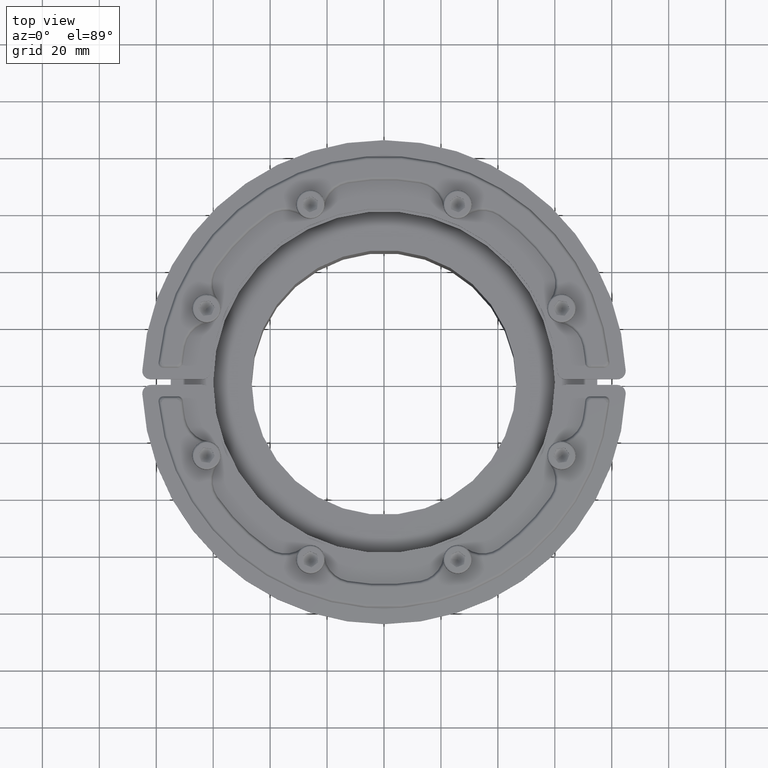
[diagram: clean part render]
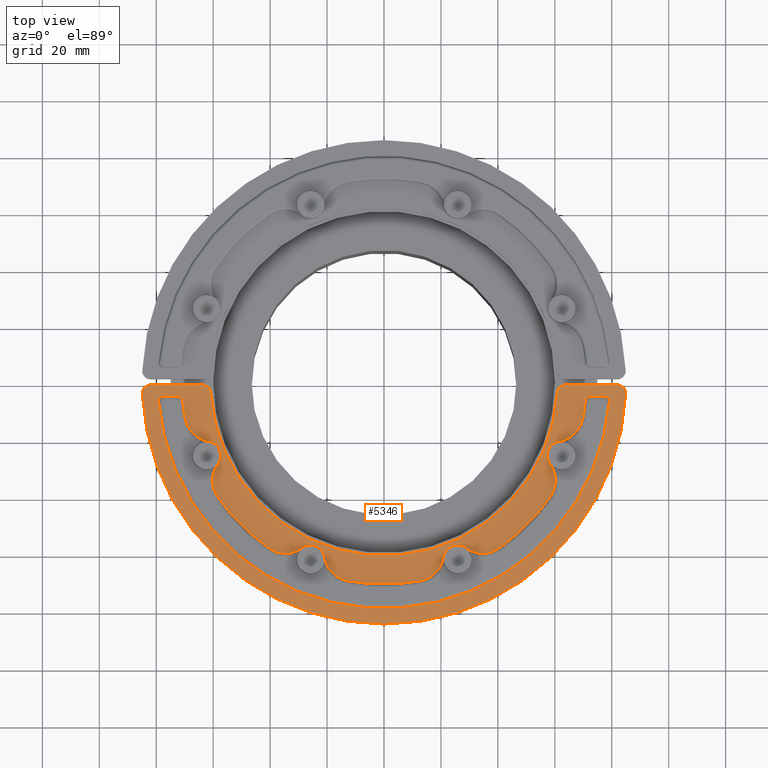
[diagram: same view with one face highlighted and labeled with its STEP entity id]
A machine part, top view. The second image highlights one B-rep face of the part: STEP entity #5346.
In plain terms, the highlighted planar face has unit normal (0, 0, 1).
Its self-contained STEP definition (entity closure, byte-faithful):
#40=B_SPLINE_CURVE_WITH_KNOTS('',3,(#8562,#8563,#8564,#8565,#8566,#8567,
#8568,#8569,#8570,#8571),.UNSPECIFIED.,.F.,.F.,(4,2,2,2,4),(0.,0.0737591383660685,
0.137984486119956,0.197526059319079,0.259689030170844),.UNSPECIFIED.);
#43=B_SPLINE_CURVE_WITH_KNOTS('',3,(#8604,#8605,#8606,#8607,#8608,#8609,
#8610,#8611,#8612,#8613,#8614,#8615),.UNSPECIFIED.,.F.,.F.,(4,2,2,2,2,4),
(0.,0.0768242660704358,0.140348230484178,0.20075593971541,0.245620467000132,
0.292974545126441),.UNSPECIFIED.);
#46=B_SPLINE_CURVE_WITH_KNOTS('',3,(#8649,#8650,#8651,#8652,#8653,#8654,
#8655,#8656,#8657,#8658),.UNSPECIFIED.,.F.,.F.,(4,2,2,2,4),(0.,0.0737731416211753,
0.138011891422635,0.200687434417592,0.259700462694515),.UNSPECIFIED.);
#49=B_SPLINE_CURVE_WITH_KNOTS('',3,(#8690,#8691,#8692,#8693,#8694,#8695,
#8696,#8697,#8698,#8699,#8700,#8701),.UNSPECIFIED.,.F.,.F.,(4,2,2,2,2,4),
(0.,0.0768437936843456,0.140401779394522,0.200734305158943,0.245638052211019,
0.292968852687228),.UNSPECIFIED.);
#115=FACE_BOUND('',#775,.T.);
#148=PLANE('',#5793);
#457=FACE_OUTER_BOUND('',#774,.T.);
#774=EDGE_LOOP('',(#3653,#3654,#3655,#3656,#3657,#3658,#3659,#3660));
#775=EDGE_LOOP('',(#3661,#3662,#3663,#3664,#3665,#3666,#3667,#3668,#3669,
#3670,#3671,#3672,#3673,#3674,#3675,#3676,#3677,#3678,#3679,#3680,#3681,
#3682,#3683,#3684));
#1062=LINE('',#8216,#1354);
#1068=LINE('',#8231,#1360);
#1085=LINE('',#8578,#1377);
#1086=LINE('',#8665,#1378);
#1354=VECTOR('',#6461,10.);
#1360=VECTOR('',#6477,10.);
#1377=VECTOR('',#6688,10.);
#1378=VECTOR('',#6695,10.);
#1664=CIRCLE('',#5669,3.);
#1665=CIRCLE('',#5672,3.);
#1666=CIRCLE('',#5674,3.);
#1668=CIRCLE('',#5678,3.);
#1720=CIRCLE('',#5751,5.);
#1721=CIRCLE('',#5753,9.99999999999993);
#1722=CIRCLE('',#5755,71.);
#1723=CIRCLE('',#5757,9.9999999999999);
#1724=CIRCLE('',#5759,5.);
#1725=CIRCLE('',#5761,9.99999999999992);
#1726=CIRCLE('',#5763,71.);
#1727=CIRCLE('',#5765,9.9999999999999);
#1728=CIRCLE('',#5767,5.);
#1729=CIRCLE('',#5769,9.99999999999993);
#1730=CIRCLE('',#5771,71.);
#1731=CIRCLE('',#5774,79.5);
#1732=CIRCLE('',#5777,71.);
#1733=CIRCLE('',#5779,9.9999999999999);
#1734=CIRCLE('',#5781,5.);
#1735=CIRCLE('',#5783,9.99999999999992);
#1736=CIRCLE('',#5785,71.);
#1737=CIRCLE('',#5787,9.9999999999999);
#1739=CIRCLE('',#5790,61.);
#1740=CIRCLE('',#5792,85.);
#2092=VERTEX_POINT('',#8209);
#2093=VERTEX_POINT('',#8211);
#2094=VERTEX_POINT('',#8215);
#2095=VERTEX_POINT('',#8220);
#2096=VERTEX_POINT('',#8224);
#2097=VERTEX_POINT('',#8226);
#2098=VERTEX_POINT('',#8230);
#2101=VERTEX_POINT('',#8238);
#2132=VERTEX_POINT('',#8489);
#2133=VERTEX_POINT('',#8491);
#2134=VERTEX_POINT('',#8495);
#2135=VERTEX_POINT('',#8499);
#2136=VERTEX_POINT('',#8503);
#2137=VERTEX_POINT('',#8507);
#2138=VERTEX_POINT('',#8511);
#2139=VERTEX_POINT('',#8515);
#2140=VERTEX_POINT('',#8519);
#2141=VERTEX_POINT('',#8523);
#2142=VERTEX_POINT('',#8527);
#2143=VERTEX_POINT('',#8531);
#2144=VERTEX_POINT('',#8557);
#2145=VERTEX_POINT('',#8573);
#2146=VERTEX_POINT('',#8599);
#2147=VERTEX_POINT('',#8617);
#2148=VERTEX_POINT('',#8643);
#2149=VERTEX_POINT('',#8648);
#2150=VERTEX_POINT('',#8664);
#2151=VERTEX_POINT('',#8703);
#2152=VERTEX_POINT('',#8707);
#2153=VERTEX_POINT('',#8711);
#2154=VERTEX_POINT('',#8715);
#2155=VERTEX_POINT('',#8719);
#2598=EDGE_CURVE('',#2092,#2093,#1664,.T.);
#2600=EDGE_CURVE('',#2094,#2093,#1062,.T.);
#2603=EDGE_CURVE('',#2094,#2095,#1665,.T.);
#2606=EDGE_CURVE('',#2096,#2097,#1666,.T.);
#2608=EDGE_CURVE('',#2098,#2097,#1068,.T.);
#2612=EDGE_CURVE('',#2098,#2101,#1668,.T.);
#2672=EDGE_CURVE('',#2133,#2132,#1720,.T.);
#2675=EDGE_CURVE('',#2132,#2134,#1721,.T.);
#2677=EDGE_CURVE('',#2134,#2135,#1722,.T.);
#2679=EDGE_CURVE('',#2135,#2136,#1723,.T.);
#2681=EDGE_CURVE('',#2136,#2137,#1724,.T.);
#2683=EDGE_CURVE('',#2137,#2138,#1725,.T.);
#2685=EDGE_CURVE('',#2138,#2139,#1726,.T.);
#2687=EDGE_CURVE('',#2139,#2140,#1727,.T.);
#2689=EDGE_CURVE('',#2140,#2141,#1728,.T.);
#2691=EDGE_CURVE('',#2141,#2142,#1729,.T.);
#2693=EDGE_CURVE('',#2142,#2143,#1730,.T.);
#2695=EDGE_CURVE('',#2144,#2143,#40,.F.);
#2697=EDGE_CURVE('',#2144,#2145,#1085,.T.);
#2699=EDGE_CURVE('',#2146,#2145,#43,.F.);
#2701=EDGE_CURVE('',#2146,#2147,#1731,.T.);
#2703=EDGE_CURVE('',#2148,#2149,#46,.F.);
#2705=EDGE_CURVE('',#2150,#2149,#1086,.T.);
#2707=EDGE_CURVE('',#2150,#2147,#49,.F.);
#2709=EDGE_CURVE('',#2148,#2151,#1732,.T.);
#2711=EDGE_CURVE('',#2151,#2152,#1733,.T.);
#2713=EDGE_CURVE('',#2152,#2153,#1734,.T.);
#2715=EDGE_CURVE('',#2153,#2154,#1735,.T.);
#2717=EDGE_CURVE('',#2154,#2155,#1736,.T.);
#2718=EDGE_CURVE('',#2155,#2133,#1737,.T.);
#2720=EDGE_CURVE('',#2092,#2101,#1739,.T.);
#2721=EDGE_CURVE('',#2096,#2095,#1740,.T.);
#3653=ORIENTED_EDGE('',*,*,#2598,.F.);
#3654=ORIENTED_EDGE('',*,*,#2720,.T.);
#3655=ORIENTED_EDGE('',*,*,#2612,.F.);
#3656=ORIENTED_EDGE('',*,*,#2608,.T.);
#3657=ORIENTED_EDGE('',*,*,#2606,.F.);
#3658=ORIENTED_EDGE('',*,*,#2721,.T.);
#3659=ORIENTED_EDGE('',*,*,#2603,.F.);
#3660=ORIENTED_EDGE('',*,*,#2600,.T.);
#3661=ORIENTED_EDGE('',*,*,#2705,.T.);
#3662=ORIENTED_EDGE('',*,*,#2703,.F.);
#3663=ORIENTED_EDGE('',*,*,#2709,.T.);
#3664=ORIENTED_EDGE('',*,*,#2711,.T.);
#3665=ORIENTED_EDGE('',*,*,#2713,.T.);
#3666=ORIENTED_EDGE('',*,*,#2715,.T.);
#3667=ORIENTED_EDGE('',*,*,#2717,.T.);
#3668=ORIENTED_EDGE('',*,*,#2718,.T.);
#3669=ORIENTED_EDGE('',*,*,#2672,.T.);
#3670=ORIENTED_EDGE('',*,*,#2675,.T.);
#3671=ORIENTED_EDGE('',*,*,#2677,.T.);
#3672=ORIENTED_EDGE('',*,*,#2679,.T.);
#3673=ORIENTED_EDGE('',*,*,#2681,.T.);
#3674=ORIENTED_EDGE('',*,*,#2683,.T.);
#3675=ORIENTED_EDGE('',*,*,#2685,.T.);
#3676=ORIENTED_EDGE('',*,*,#2687,.T.);
#3677=ORIENTED_EDGE('',*,*,#2689,.T.);
#3678=ORIENTED_EDGE('',*,*,#2691,.T.);
#3679=ORIENTED_EDGE('',*,*,#2693,.T.);
#3680=ORIENTED_EDGE('',*,*,#2695,.F.);
#3681=ORIENTED_EDGE('',*,*,#2697,.T.);
#3682=ORIENTED_EDGE('',*,*,#2699,.F.);
#3683=ORIENTED_EDGE('',*,*,#2701,.T.);
#3684=ORIENTED_EDGE('',*,*,#2707,.F.);
#5346=ADVANCED_FACE('',(#457,#115),#148,.T.);
#5669=AXIS2_PLACEMENT_3D('',#8212,#6456,#6457);
#5672=AXIS2_PLACEMENT_3D('',#8221,#6466,#6467);
#5674=AXIS2_PLACEMENT_3D('',#8227,#6472,#6473);
#5678=AXIS2_PLACEMENT_3D('',#8239,#6484,#6485);
#5751=AXIS2_PLACEMENT_3D('',#8492,#6634,#6635);
#5753=AXIS2_PLACEMENT_3D('',#8497,#6640,#6641);
#5755=AXIS2_PLACEMENT_3D('',#8501,#6645,#6646);
#5757=AXIS2_PLACEMENT_3D('',#8505,#6650,#6651);
#5759=AXIS2_PLACEMENT_3D('',#8509,#6655,#6656);
#5761=AXIS2_PLACEMENT_3D('',#8513,#6660,#6661);
#5763=AXIS2_PLACEMENT_3D('',#8517,#6665,#6666);
#5765=AXIS2_PLACEMENT_3D('',#8521,#6670,#6671);
#5767=AXIS2_PLACEMENT_3D('',#8525,#6675,#6676);
#5769=AXIS2_PLACEMENT_3D('',#8529,#6680,#6681);
#5771=AXIS2_PLACEMENT_3D('',#8536,#6684,#6685);
#5774=AXIS2_PLACEMENT_3D('',#8622,#6691,#6692);
#5777=AXIS2_PLACEMENT_3D('',#8705,#6699,#6700);
#5779=AXIS2_PLACEMENT_3D('',#8709,#6704,#6705);
#5781=AXIS2_PLACEMENT_3D('',#8713,#6709,#6710);
#5783=AXIS2_PLACEMENT_3D('',#8717,#6714,#6715);
#5785=AXIS2_PLACEMENT_3D('',#8721,#6719,#6720);
#5787=AXIS2_PLACEMENT_3D('',#8723,#6723,#6724);
#5790=AXIS2_PLACEMENT_3D('',#8726,#6729,#6730);
#5792=AXIS2_PLACEMENT_3D('',#8728,#6733,#6734);
#5793=AXIS2_PLACEMENT_3D('',#8729,#6735,#6736);
#6456=DIRECTION('center_axis',(0.,0.,-1.));
#6457=DIRECTION('ref_axis',(-0.684653196881456,0.728868986855664,0.));
#6461=DIRECTION('',(-1.,1.22464679914735E-16,0.));
#6466=DIRECTION('center_axis',(0.,0.,-1.));
#6467=DIRECTION('ref_axis',(0.724147943380659,0.689644659297498,0.));
#6472=DIRECTION('center_axis',(0.,0.,-1.));
#6473=DIRECTION('ref_axis',(-0.724147943380658,0.689644659297499,0.));
#6477=DIRECTION('',(-1.,1.22464679914735E-16,0.));
#6484=DIRECTION('center_axis',(0.,0.,-1.));
#6485=DIRECTION('ref_axis',(0.684653196881457,0.728868986855663,0.));
#6634=DIRECTION('center_axis',(0.,0.,-1.));
#6635=DIRECTION('ref_axis',(0.987489011013653,0.157687834430174,0.));
#6640=DIRECTION('center_axis',(0.,0.,1.));
#6641=DIRECTION('ref_axis',(0.987489011013653,0.15768783443017,0.));
#6645=DIRECTION('center_axis',(0.,0.,1.));
#6646=DIRECTION('ref_axis',(0.18063600851539,0.983550015214086,0.));
#6650=DIRECTION('center_axis',(0.,0.,1.));
#6651=DIRECTION('ref_axis',(-0.180636008515384,0.983550015214087,0.));
#6655=DIRECTION('center_axis',(0.,0.,-1.));
#6656=DIRECTION('ref_axis',(0.586758038998754,0.809762313071148,0.));
#6660=DIRECTION('center_axis',(0.,0.,1.));
#6661=DIRECTION('ref_axis',(0.586758038998757,0.809762313071147,0.));
#6665=DIRECTION('center_axis',(0.,0.,1.));
#6666=DIRECTION('ref_axis',(-0.567745938846309,0.823203831941715,0.));
#6670=DIRECTION('center_axis',(0.,0.,1.));
#6671=DIRECTION('ref_axis',(-0.823203831941712,0.567745938846314,0.));
#6675=DIRECTION('center_axis',(0.,0.,-1.));
#6676=DIRECTION('ref_axis',(-0.157687834430174,0.987489011013653,0.));
#6680=DIRECTION('center_axis',(0.,0.,1.));
#6681=DIRECTION('ref_axis',(-0.15768783443017,0.987489011013653,0.));
#6684=DIRECTION('center_axis',(0.,0.,1.));
#6685=DIRECTION('ref_axis',(-0.983550015214086,0.18063600851539,0.));
#6688=DIRECTION('',(1.,-1.22464679914735E-16,0.));
#6691=DIRECTION('center_axis',(0.,0.,-1.));
#6692=DIRECTION('ref_axis',(-0.998020270468793,-0.0628930817610062,0.));
#6695=DIRECTION('',(1.,-1.22464679914735E-16,0.));
#6699=DIRECTION('center_axis',(0.,0.,1.));
#6700=DIRECTION('ref_axis',(0.997517251246522,0.0704225352112675,0.));
#6704=DIRECTION('center_axis',(0.,0.,1.));
#6705=DIRECTION('ref_axis',(0.983550015214087,0.180636008515384,0.));
#6709=DIRECTION('center_axis',(0.,0.,-1.));
#6710=DIRECTION('ref_axis',(0.809762313071148,-0.586758038998754,0.));
#6714=DIRECTION('center_axis',(0.,0.,1.));
#6715=DIRECTION('ref_axis',(0.809762313071147,-0.586758038998757,0.));
#6719=DIRECTION('center_axis',(0.,0.,1.));
#6720=DIRECTION('ref_axis',(0.823203831941715,0.567745938846309,0.));
#6723=DIRECTION('center_axis',(0.,0.,1.));
#6724=DIRECTION('ref_axis',(0.567745938846314,0.823203831941712,0.));
#6729=DIRECTION('center_axis',(0.,0.,-1.));
#6730=DIRECTION('ref_axis',(0.999865618490289,0.0163934426229507,0.));
#6733=DIRECTION('center_axis',(0.,0.,1.));
#6734=DIRECTION('ref_axis',(-0.999930793452978,-0.0117647058823528,0.));
#6735=DIRECTION('center_axis',(0.,0.,1.));
#6736=DIRECTION('ref_axis',(-1.,1.22464679914735E-16,0.));
#8209=CARTESIAN_POINT('',(60.8807427989344,-3.81250000000001,3.));
#8211=CARTESIAN_POINT('',(63.8748776906853,-1.00000000000001,3.));
#8212=CARTESIAN_POINT('Origin',(63.8748776906853,-4.00000000000001,3.));
#8215=CARTESIAN_POINT('',(81.9023809177731,-1.00000000000001,3.));
#8216=CARTESIAN_POINT('',(84.9941174435031,-1.00000000000001,3.));
#8220=CARTESIAN_POINT('',(84.8988094879355,-4.14634146341464,3.));
#8221=CARTESIAN_POINT('Origin',(81.9023809177731,-4.,3.));
#8224=CARTESIAN_POINT('',(-84.8988094879355,-4.14634146341462,3.));
#8226=CARTESIAN_POINT('',(-81.9023809177731,-0.99999999999999,3.));
#8227=CARTESIAN_POINT('Origin',(-81.9023809177731,-3.99999999999999,3.));
#8230=CARTESIAN_POINT('',(-63.8748776906853,-0.999999999999992,3.));
#8231=CARTESIAN_POINT('',(-60.9918027279076,-0.999999999999993,3.));
#8238=CARTESIAN_POINT('',(-60.8807427989344,-3.8125,3.));
#8239=CARTESIAN_POINT('Origin',(-63.8748776906853,-4.,3.));
#8489=CARTESIAN_POINT('',(-20.8936866295753,-61.573429272361,3.));
#8491=CARTESIAN_POINT('',(-28.7649218796373,-58.3130568791561,3.));
#8492=CARTESIAN_POINT('Origin',(-25.8311316846436,-62.3618684445118,3.));
#8495=CARTESIAN_POINT('',(-12.8251566045927,-69.8320510802001,3.));
#8497=CARTESIAN_POINT('Origin',(-11.0187965194389,-59.9965509280593,3.));
#8499=CARTESIAN_POINT('',(12.8251566045927,-69.8320510802001,3.));
#8501=CARTESIAN_POINT('Origin',(0.,0.,3.));
#8503=CARTESIAN_POINT('',(20.8936866295753,-61.573429272361,3.));
#8505=CARTESIAN_POINT('Origin',(11.0187965194388,-59.9965509280593,3.));
#8507=CARTESIAN_POINT('',(28.7649218796373,-58.3130568791561,3.));
#8509=CARTESIAN_POINT('Origin',(25.8311316846435,-62.3618684445119,3.));
#8511=CARTESIAN_POINT('',(40.3099616580879,-58.4474720678618,3.));
#8513=CARTESIAN_POINT('Origin',(34.6325022696248,-50.2154337484447,3.));
#8515=CARTESIAN_POINT('',(58.4474720678617,-40.309961658088,3.));
#8517=CARTESIAN_POINT('Origin',(0.,0.,3.));
#8519=CARTESIAN_POINT('',(58.3130568791561,-28.7649218796374,3.));
#8521=CARTESIAN_POINT('Origin',(50.2154337484447,-34.6325022696249,3.));
#8523=CARTESIAN_POINT('',(61.573429272361,-20.8936866295753,3.));
#8525=CARTESIAN_POINT('Origin',(62.3618684445118,-25.8311316846436,3.));
#8527=CARTESIAN_POINT('',(69.8320510802001,-12.8251566045927,3.));
#8529=CARTESIAN_POINT('Origin',(59.9965509280593,-11.0187965194389,3.));
#8531=CARTESIAN_POINT('',(70.6952072465394,-6.57173284908087,3.00000000165182));
#8536=CARTESIAN_POINT('Origin',(0.,0.,3.));
#8557=CARTESIAN_POINT('',(72.4198226101459,-5.00000000108297,3.00000000187574));
#8562=CARTESIAN_POINT('Ctrl Pts',(70.6952072447973,-6.57173284721473,3.));
#8563=CARTESIAN_POINT('Ctrl Pts',(70.7179643035946,-6.32692451045478,3.));
#8564=CARTESIAN_POINT('Ctrl Pts',(70.7836218728499,-6.08855457425566,3.00000000000062));
#8565=CARTESIAN_POINT('Ctrl Pts',(70.9982263399093,-5.68293269670203,3.00000000000062));
#8566=CARTESIAN_POINT('Ctrl Pts',(71.1320919970651,-5.51680846078489,3.00000000000001));
#8567=CARTESIAN_POINT('Ctrl Pts',(71.4498148394007,-5.25551816030517,3.00000000000001));
#8568=CARTESIAN_POINT('Ctrl Pts',(71.6236417622012,-5.16071898650155,3.));
#8569=CARTESIAN_POINT('Ctrl Pts',(72.0070039999619,-5.03074311381591,3.));
#8570=CARTESIAN_POINT('Ctrl Pts',(72.2127715174494,-5.00000000000001,3.));
#8571=CARTESIAN_POINT('Ctrl Pts',(72.4198226081719,-5.00000000000001,3.));
#8573=CARTESIAN_POINT('',(77.4760183160204,-4.99999999827378,2.99999999701008));
#8578=CARTESIAN_POINT('',(35.4118624192515,-5.,3.));
#8599=CARTESIAN_POINT('',(79.2015672279042,-6.88198730277634,2.99999999677662));
#8604=CARTESIAN_POINT('Ctrl Pts',(77.4760183122549,-5.00000000000001,3.));
#8605=CARTESIAN_POINT('Ctrl Pts',(77.7320991991564,-5.00000000000001,3.));
#8606=CARTESIAN_POINT('Ctrl Pts',(77.9866213128213,-5.04377399056024,3.00000000000213));
#8607=CARTESIAN_POINT('Ctrl Pts',(78.4175396454987,-5.22233978961189,3.00000000000213));
#8608=CARTESIAN_POINT('Ctrl Pts',(78.593972409158,-5.33779153865159,3.00000000000006));
#8609=CARTESIAN_POINT('Ctrl Pts',(78.8840297755733,-5.62963705870246,3.00000000000006));
#8610=CARTESIAN_POINT('Ctrl Pts',(78.9943477429331,-5.79679540073827,3.));
#8611=CARTESIAN_POINT('Ctrl Pts',(79.1299384632839,-6.11916056545892,3.));
#8612=CARTESIAN_POINT('Ctrl Pts',(79.1685912142564,-6.26348580365904,3.));
#8613=CARTESIAN_POINT('Ctrl Pts',(79.2122976364288,-6.56688685896127,3.));
#8614=CARTESIAN_POINT('Ctrl Pts',(79.2152026772048,-6.72506326293173,3.));
#8615=CARTESIAN_POINT('Ctrl Pts',(79.2015672238369,-6.88198730658845,3.));
#8617=CARTESIAN_POINT('',(-79.2015672278917,-6.88198730278801,2.9999999967865));
#8622=CARTESIAN_POINT('Origin',(0.,0.,3.));
#8643=CARTESIAN_POINT('',(-70.6952072465408,-6.57173284908235,3.00000000165315));
#8648=CARTESIAN_POINT('',(-72.4198226101474,-5.00000000108379,3.0000000018772));
#8649=CARTESIAN_POINT('Ctrl Pts',(-72.419822608172,-4.99999999999999,3.));
#8650=CARTESIAN_POINT('Ctrl Pts',(-72.1739121361014,-4.99999999999999,3.));
#8651=CARTESIAN_POINT('Ctrl Pts',(-71.930424759056,-5.04336574928162,3.00000000000055));
#8652=CARTESIAN_POINT('Ctrl Pts',(-71.5066138309337,-5.21958448933773,3.00000000000055));
#8653=CARTESIAN_POINT('Ctrl Pts',(-71.32876799456,-5.33754297747484,3.00000000000001));
#8654=CARTESIAN_POINT('Ctrl Pts',(-71.0318560191459,-5.63718692445664,3.00000000000001));
#8655=CARTESIAN_POINT('Ctrl Pts',(-70.9173064832529,-5.81133510095449,3.));
#8656=CARTESIAN_POINT('Ctrl Pts',(-70.759057259348,-6.18393605820333,3.));
#8657=CARTESIAN_POINT('Ctrl Pts',(-70.7134003213157,-6.37602140477025,3.));
#8658=CARTESIAN_POINT('Ctrl Pts',(-70.6952072447973,-6.57173284721471,3.));
#8664=CARTESIAN_POINT('',(-77.4760183160088,-4.99999999827906,2.99999999701925));
#8665=CARTESIAN_POINT('',(-39.6713057511345,-4.99999999999999,3.));
#8690=CARTESIAN_POINT('Ctrl Pts',(-79.2015672238369,-6.88198730658843,3.));
#8691=CARTESIAN_POINT('Ctrl Pts',(-79.2237407254187,-6.62680286670477,3.));
#8692=CARTESIAN_POINT('Ctrl Pts',(-79.202082399095,-6.3693645171673,3.00000000000188));
#8693=CARTESIAN_POINT('Ctrl Pts',(-79.0613586360234,-5.92446411920916,3.00000000000188));
#8694=CARTESIAN_POINT('Ctrl Pts',(-78.9615231084649,-5.73858981422158,3.00000000000006));
#8695=CARTESIAN_POINT('Ctrl Pts',(-78.6959043048602,-5.42451271707248,3.00000000000006));
#8696=CARTESIAN_POINT('Ctrl Pts',(-78.5391359242237,-5.30029242051091,2.99999999999999));
#8697=CARTESIAN_POINT('Ctrl Pts',(-78.2298360810746,-5.13731964546411,2.99999999999999));
#8698=CARTESIAN_POINT('Ctrl Pts',(-78.0892744102729,-5.08629260453193,3.));
#8699=CARTESIAN_POINT('Ctrl Pts',(-77.7907185265804,-5.01654632699664,3.));
#8700=CARTESIAN_POINT('Ctrl Pts',(-77.6334600580174,-5.,3.));
#8701=CARTESIAN_POINT('Ctrl Pts',(-77.4760183122549,-5.,3.));
#8703=CARTESIAN_POINT('',(-69.8320510802001,-12.8251566045927,3.));
#8705=CARTESIAN_POINT('Origin',(0.,0.,3.));
#8707=CARTESIAN_POINT('',(-61.573429272361,-20.8936866295753,3.));
#8709=CARTESIAN_POINT('Origin',(-59.9965509280593,-11.0187965194388,3.));
#8711=CARTESIAN_POINT('',(-58.3130568791561,-28.7649218796373,3.));
#8713=CARTESIAN_POINT('Origin',(-62.3618684445119,-25.8311316846435,3.));
#8715=CARTESIAN_POINT('',(-58.4474720678618,-40.3099616580879,3.));
#8717=CARTESIAN_POINT('Origin',(-50.2154337484447,-34.6325022696248,3.));
#8719=CARTESIAN_POINT('',(-40.309961658088,-58.4474720678617,3.));
#8721=CARTESIAN_POINT('Origin',(0.,0.,3.));
#8723=CARTESIAN_POINT('Origin',(-34.6325022696249,-50.2154337484447,3.));
#8726=CARTESIAN_POINT('Origin',(0.,0.,3.));
#8728=CARTESIAN_POINT('Origin',(0.,0.,3.));
#8729=CARTESIAN_POINT('Origin',(-5.86853476299066E-15,-42.327142609845,
3.));